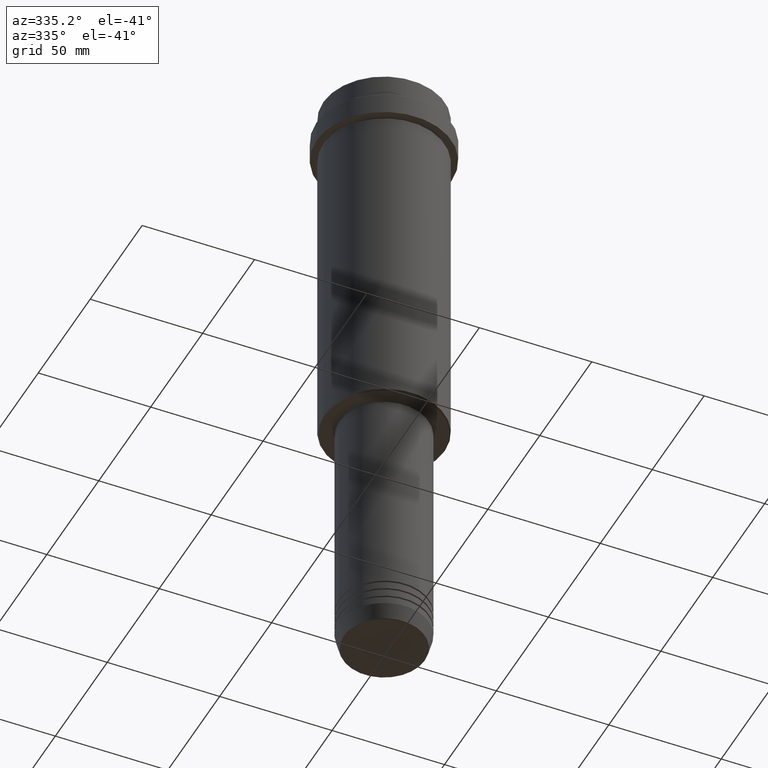
[diagram: clean part render]
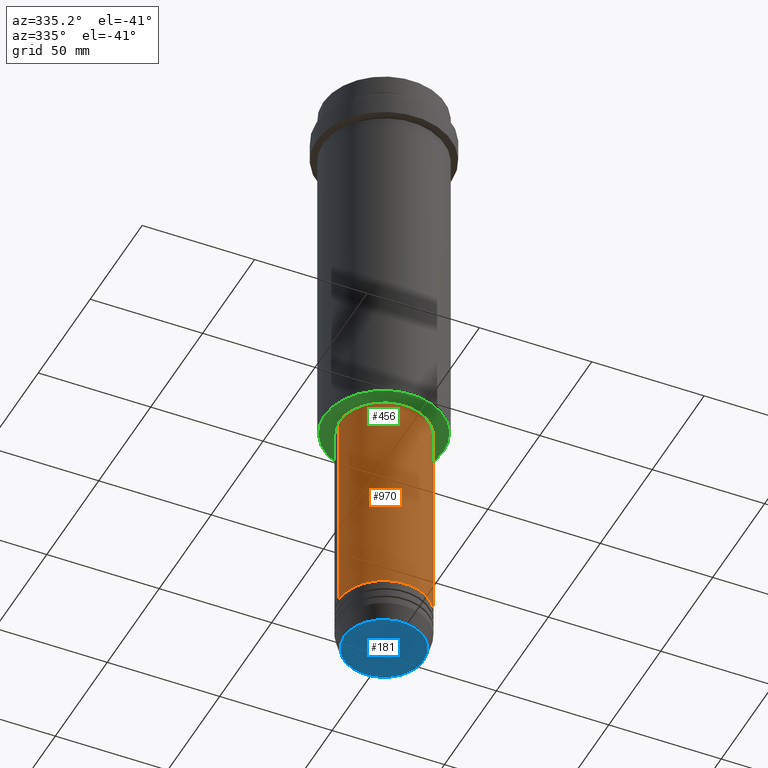
[diagram: same view with three faces highlighted in distinct colors, each labeled with its STEP entity id]
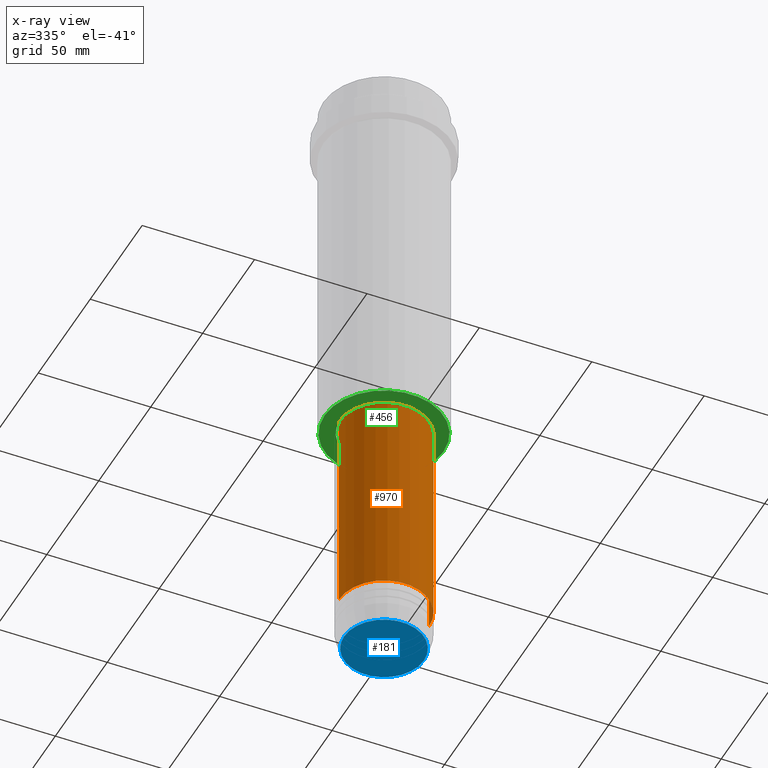
[diagram: x-ray of the same camera — body ghosted, the three highlighted faces saturated]
A machine part, auxiliary view with three faces highlighted in distinct colors.
The next image is the same camera in x-ray (body ghosted, the three faces saturated) — at least one of them is partly hidden behind the body in this view.
Their STEP definitions:

[orange] entity #970 — the highlighted cylindrical surface (partial cylindrical patch) has radius 20 mm, axis along (-0, -0, 1).
#14 = DIRECTION ( 'NONE',  ( 1.000000000000000000, 0.000000000000000000, 0.000000000000000000 ) ) ;
#26 = CARTESIAN_POINT ( 'NONE',  ( 0.000000000000000000, 0.000000000000000000, -263.9999999999998863 ) ) ;
#85 = CIRCLE ( 'NONE', #1313, 19.99999999999999645 ) ;
#113 = EDGE_LOOP ( 'NONE', ( #378, #1002, #1114, #912 ) ) ;
#133 = DIRECTION ( 'NONE',  ( -0.000000000000000000, -0.000000000000000000, 1.000000000000000000 ) ) ;
#159 = DIRECTION ( 'NONE',  ( -0.000000000000000000, -0.000000000000000000, 1.000000000000000000 ) ) ;
#186 = VERTEX_POINT ( 'NONE', #943 ) ;
#344 = VECTOR ( 'NONE', #930, 1000.000000000000000 ) ;
#376 = DIRECTION ( 'NONE',  ( 1.000000000000000000, 0.000000000000000000, 0.000000000000000000 ) ) ;
#377 = LINE ( 'NONE', #509, #344 ) ;
#378 = ORIENTED_EDGE ( 'NONE', *, *, #513, .F. ) ;
#415 = VECTOR ( 'NONE', #159, 1000.000000000000000 ) ;
#477 = EDGE_CURVE ( 'NONE', #1412, #186, #377, .T. ) ;
#502 = CARTESIAN_POINT ( 'NONE',  ( -19.99999999999999645, 2.449293598294706119E-15, -169.0000000000000853 ) ) ;
#509 = CARTESIAN_POINT ( 'NONE',  ( 19.99999999999999645, 0.000000000000000000, 0.000000000000000000 ) ) ;
#513 = EDGE_CURVE ( 'NONE', #1224, #986, #1257, .T. ) ;
#516 = DIRECTION ( 'NONE',  ( -0.000000000000000000, -0.000000000000000000, 1.000000000000000000 ) ) ;
#557 = CIRCLE ( 'NONE', #645, 20.00000000000000000 ) ;
#585 = CARTESIAN_POINT ( 'NONE',  ( -20.00000000000000000, 2.449293598294706513E-15, -263.9999999999998863 ) ) ;
#645 = AXIS2_PLACEMENT_3D ( 'NONE', #26, #133, #14 ) ;
#686 = FACE_OUTER_BOUND ( 'NONE', #113, .T. ) ;
#725 = CARTESIAN_POINT ( 'NONE',  ( 0.000000000000000000, 0.000000000000000000, -169.0000000000000853 ) ) ;
#912 = ORIENTED_EDGE ( 'NONE', *, *, #1094, .F. ) ;
#917 = CARTESIAN_POINT ( 'NONE',  ( -19.99999999999999645, 2.449293598294706119E-15, 0.000000000000000000 ) ) ;
#930 = DIRECTION ( 'NONE',  ( -0.000000000000000000, -0.000000000000000000, 1.000000000000000000 ) ) ;
#943 = CARTESIAN_POINT ( 'NONE',  ( 19.99999999999999645, 0.000000000000000000, -169.0000000000000853 ) ) ;
#970 = ADVANCED_FACE ( 'NONE', ( #686 ), #1024, .T. ) ;
#986 = VERTEX_POINT ( 'NONE', #502 ) ;
#1002 = ORIENTED_EDGE ( 'NONE', *, *, #1184, .T. ) ;
#1024 = CYLINDRICAL_SURFACE ( 'NONE', #1053, 19.99999999999999645 ) ;
#1042 = CARTESIAN_POINT ( 'NONE',  ( 0.000000000000000000, 0.000000000000000000, 0.000000000000000000 ) ) ;
#1053 = AXIS2_PLACEMENT_3D ( 'NONE', #1042, #1344, #376 ) ;
#1061 = DIRECTION ( 'NONE',  ( 1.000000000000000000, 0.000000000000000000, 0.000000000000000000 ) ) ;
#1094 = EDGE_CURVE ( 'NONE', #986, #186, #85, .T. ) ;
#1114 = ORIENTED_EDGE ( 'NONE', *, *, #477, .T. ) ;
#1184 = EDGE_CURVE ( 'NONE', #1224, #1412, #557, .T. ) ;
#1224 = VERTEX_POINT ( 'NONE', #585 ) ;
#1241 = CARTESIAN_POINT ( 'NONE',  ( 20.00000000000000000, 0.000000000000000000, -263.9999999999998863 ) ) ;
#1257 = LINE ( 'NONE', #917, #415 ) ;
#1313 = AXIS2_PLACEMENT_3D ( 'NONE', #725, #516, #1061 ) ;
#1344 = DIRECTION ( 'NONE',  ( -0.000000000000000000, -0.000000000000000000, 1.000000000000000000 ) ) ;
#1412 = VERTEX_POINT ( 'NONE', #1241 ) ;

[blue] entity #181 — the highlighted planar face has unit normal (0, -0, 1).
#13 = EDGE_CURVE ( 'NONE', #846, #1368, #148, .T. ) ;
#27 = EDGE_LOOP ( 'NONE', ( #568, #928 ) ) ;
#148 = CIRCLE ( 'NONE', #1246, 17.74069215899265473 ) ;
#172 = CIRCLE ( 'NONE', #243, 17.74069215899265473 ) ;
#181 = ADVANCED_FACE ( 'NONE', ( #954 ), #962, .F. ) ;
#243 = AXIS2_PLACEMENT_3D ( 'NONE', #738, #1167, #653 ) ;
#326 = CARTESIAN_POINT ( 'NONE',  ( 0.000000000000000000, 0.000000000000000000, -283.0000000000000568 ) ) ;
#521 = CARTESIAN_POINT ( 'NONE',  ( -17.74069215899265473, 2.202181136001357170E-15, -283.0000000000000568 ) ) ;
#568 = ORIENTED_EDGE ( 'NONE', *, *, #13, .T. ) ;
#643 = DIRECTION ( 'NONE',  ( 1.000000000000000000, 0.000000000000000000, 0.000000000000000000 ) ) ;
#653 = DIRECTION ( 'NONE',  ( 1.000000000000000000, 0.000000000000000000, 0.000000000000000000 ) ) ;
#738 = CARTESIAN_POINT ( 'NONE',  ( 0.000000000000000000, 0.000000000000000000, -283.0000000000000568 ) ) ;
#844 = DIRECTION ( 'NONE',  ( 0.000000000000000000, -0.000000000000000000, 1.000000000000000000 ) ) ;
#846 = VERTEX_POINT ( 'NONE', #1147 ) ;
#850 = AXIS2_PLACEMENT_3D ( 'NONE', #1279, #844, #643 ) ;
#928 = ORIENTED_EDGE ( 'NONE', *, *, #1101, .T. ) ;
#954 = FACE_OUTER_BOUND ( 'NONE', #27, .T. ) ;
#962 = PLANE ( 'NONE',  #850 ) ;
#979 = DIRECTION ( 'NONE',  ( 1.000000000000000000, 0.000000000000000000, 0.000000000000000000 ) ) ;
#1101 = EDGE_CURVE ( 'NONE', #1368, #846, #172, .T. ) ;
#1147 = CARTESIAN_POINT ( 'NONE',  ( 17.74069215899265473, 0.000000000000000000, -283.0000000000000568 ) ) ;
#1167 = DIRECTION ( 'NONE',  ( 0.000000000000000000, 0.000000000000000000, -1.000000000000000000 ) ) ;
#1194 = DIRECTION ( 'NONE',  ( 0.000000000000000000, 0.000000000000000000, -1.000000000000000000 ) ) ;
#1246 = AXIS2_PLACEMENT_3D ( 'NONE', #326, #1194, #979 ) ;
#1279 = CARTESIAN_POINT ( 'NONE',  ( 0.000000000000000000, 0.000000000000000000, -283.0000000000000568 ) ) ;
#1368 = VERTEX_POINT ( 'NONE', #521 ) ;

[green] entity #456 — the highlighted planar face has unit normal (0, 0, -1).
#40 = DIRECTION ( 'NONE',  ( -1.000000000000000000, 0.000000000000000000, 0.000000000000000000 ) ) ;
#54 = DIRECTION ( 'NONE',  ( 1.000000000000000000, 0.000000000000000000, 0.000000000000000000 ) ) ;
#114 = CARTESIAN_POINT ( 'NONE',  ( 26.50000000000004974, 0.000000000000000000, -168.0000000000000284 ) ) ;
#175 = AXIS2_PLACEMENT_3D ( 'NONE', #1343, #510, #1156 ) ;
#248 = DIRECTION ( 'NONE',  ( 0.000000000000000000, 0.000000000000000000, -1.000000000000000000 ) ) ;
#254 = FACE_BOUND ( 'NONE', #1131, .T. ) ;
#362 = DIRECTION ( 'NONE',  ( -0.000000000000000000, -0.000000000000000000, 1.000000000000000000 ) ) ;
#374 = FACE_OUTER_BOUND ( 'NONE', #746, .T. ) ;
#389 = CIRCLE ( 'NONE', #960, 26.50000000000004974 ) ;
#416 = CARTESIAN_POINT ( 'NONE',  ( -26.50000000000004974, 3.275930187719172707E-15, -168.0000000000000284 ) ) ;
#444 = CIRCLE ( 'NONE', #1294, 19.50000000000000000 ) ;
#447 = EDGE_CURVE ( 'NONE', #496, #1022, #444, .T. ) ;
#456 = ADVANCED_FACE ( 'NONE', ( #374, #254 ), #1340, .T. ) ;
#473 = CIRCLE ( 'NONE', #1025, 19.50000000000000000 ) ;
#496 = VERTEX_POINT ( 'NONE', #1360 ) ;
#510 = DIRECTION ( 'NONE',  ( 0.000000000000000000, 0.000000000000000000, -1.000000000000000000 ) ) ;
#617 = CARTESIAN_POINT ( 'NONE',  ( 0.000000000000000000, 0.000000000000000000, -168.0000000000000284 ) ) ;
#618 = VERTEX_POINT ( 'NONE', #416 ) ;
#660 = CARTESIAN_POINT ( 'NONE',  ( -19.50000000000000000, 2.388061258337338939E-15, -168.0000000000000284 ) ) ;
#662 = DIRECTION ( 'NONE',  ( 1.000000000000000000, 0.000000000000000000, 0.000000000000000000 ) ) ;
#697 = DIRECTION ( 'NONE',  ( -1.000000000000000000, 0.000000000000000000, -0.000000000000000000 ) ) ;
#702 = EDGE_CURVE ( 'NONE', #1022, #496, #473, .T. ) ;
#705 = DIRECTION ( 'NONE',  ( 0.000000000000000000, 0.000000000000000000, -1.000000000000000000 ) ) ;
#746 = EDGE_LOOP ( 'NONE', ( #1190, #1148 ) ) ;
#782 = CIRCLE ( 'NONE', #175, 26.50000000000004974 ) ;
#806 = ORIENTED_EDGE ( 'NONE', *, *, #447, .T. ) ;
#887 = EDGE_CURVE ( 'NONE', #1239, #618, #389, .T. ) ;
#960 = AXIS2_PLACEMENT_3D ( 'NONE', #1234, #248, #40 ) ;
#1000 = ORIENTED_EDGE ( 'NONE', *, *, #702, .T. ) ;
#1022 = VERTEX_POINT ( 'NONE', #660 ) ;
#1025 = AXIS2_PLACEMENT_3D ( 'NONE', #1394, #1413, #662 ) ;
#1131 = EDGE_LOOP ( 'NONE', ( #806, #1000 ) ) ;
#1148 = ORIENTED_EDGE ( 'NONE', *, *, #1339, .T. ) ;
#1156 = DIRECTION ( 'NONE',  ( -1.000000000000000000, 0.000000000000000000, 0.000000000000000000 ) ) ;
#1190 = ORIENTED_EDGE ( 'NONE', *, *, #887, .T. ) ;
#1230 = CARTESIAN_POINT ( 'NONE',  ( 0.000000000000000000, 27.00000000000000000, -168.0000000000000284 ) ) ;
#1234 = CARTESIAN_POINT ( 'NONE',  ( 0.000000000000000000, 0.000000000000000000, -168.0000000000000284 ) ) ;
#1239 = VERTEX_POINT ( 'NONE', #114 ) ;
#1294 = AXIS2_PLACEMENT_3D ( 'NONE', #617, #362, #54 ) ;
#1315 = AXIS2_PLACEMENT_3D ( 'NONE', #1230, #705, #697 ) ;
#1339 = EDGE_CURVE ( 'NONE', #618, #1239, #782, .T. ) ;
#1340 = PLANE ( 'NONE',  #1315 ) ;
#1343 = CARTESIAN_POINT ( 'NONE',  ( 0.000000000000000000, 0.000000000000000000, -168.0000000000000284 ) ) ;
#1360 = CARTESIAN_POINT ( 'NONE',  ( 19.50000000000000000, 0.000000000000000000, -168.0000000000000284 ) ) ;
#1394 = CARTESIAN_POINT ( 'NONE',  ( 0.000000000000000000, 0.000000000000000000, -168.0000000000000284 ) ) ;
#1413 = DIRECTION ( 'NONE',  ( -0.000000000000000000, -0.000000000000000000, 1.000000000000000000 ) ) ;